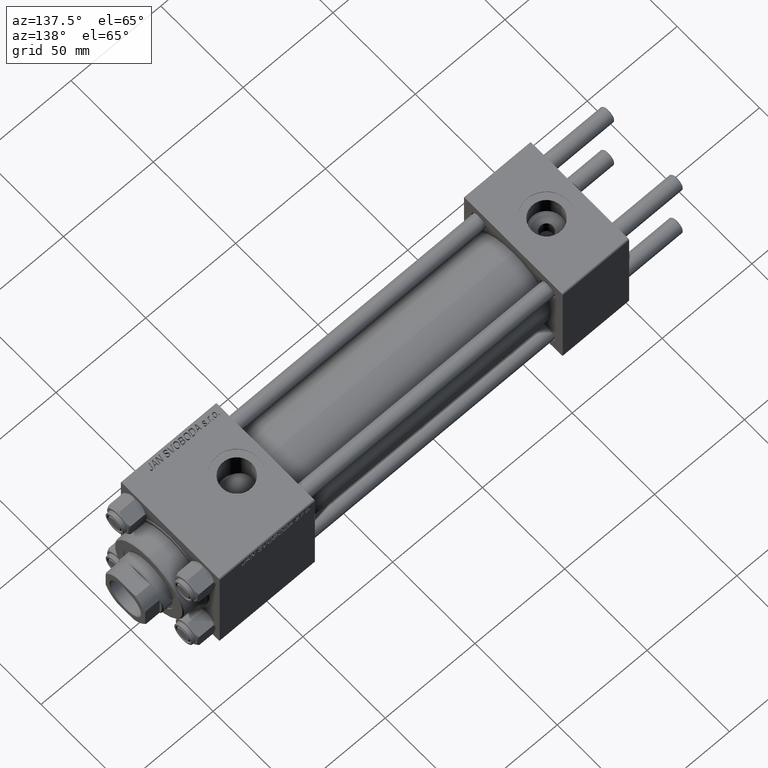
[diagram: clean part render]
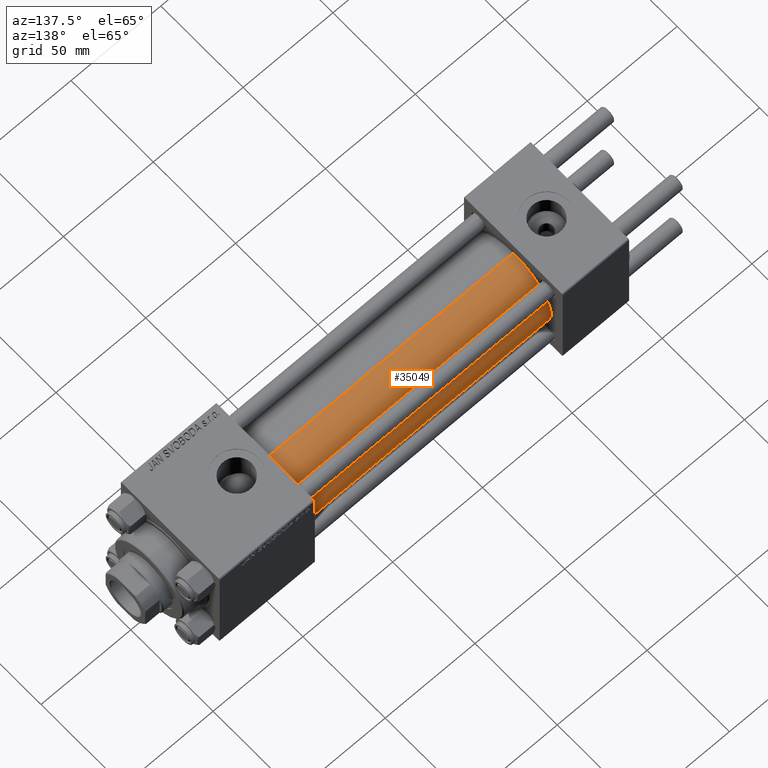
[diagram: same view with one face highlighted and labeled with its STEP entity id]
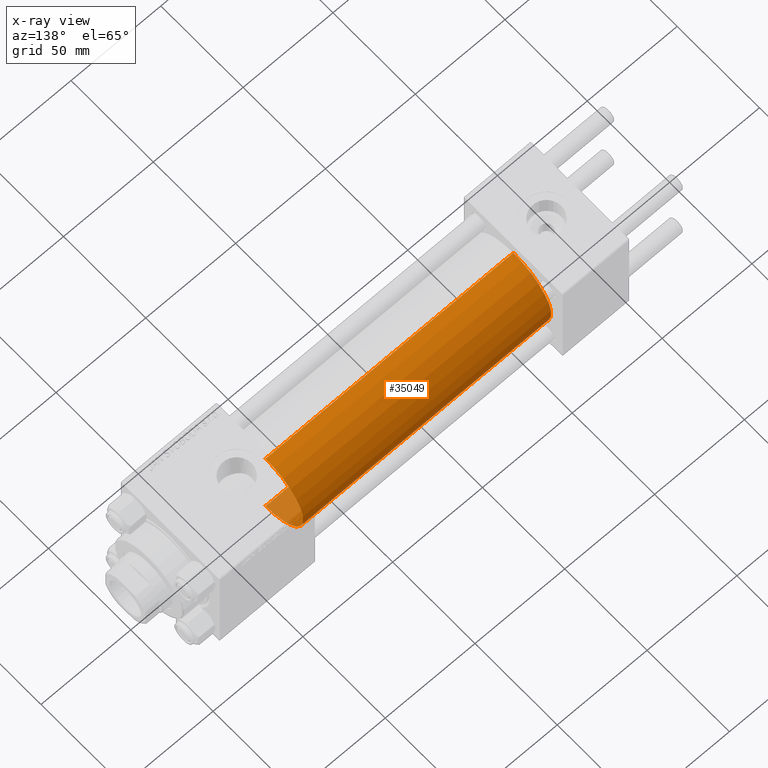
[diagram: x-ray of the same camera — body ghosted, the highlighted face saturated]
A machine part, auxiliary view. The second image highlights one B-rep face of the part: STEP entity #35049.
The next image is the same camera in x-ray: the body ghosted, the highlighted face saturated — about 3% of this face is hidden behind the body in this view.
In plain terms, the highlighted cylindrical surface (partial cylindrical patch) has radius 23 mm, axis along (-1, -0, -0).
Its self-contained STEP definition (entity closure, byte-faithful):
#1496 = CARTESIAN_POINT ( 'NONE',  ( 175.0000000000000284, 0.000000000000000000, 0.000000000000000000 ) ) ;
#2769 = VERTEX_POINT ( 'NONE', #7153 ) ;
#3836 = AXIS2_PLACEMENT_3D ( 'NONE', #21321, #36980, #9224 ) ;
#4984 = LINE ( 'NONE', #20365, #49148 ) ;
#5688 = CARTESIAN_POINT ( 'NONE',  ( 175.0000000000000284, 2.816687638038912352E-15, -23.00000000000000000 ) ) ;
#7153 = CARTESIAN_POINT ( 'NONE',  ( 37.00000000000000711, 0.000000000000000000, 23.00000000000000000 ) ) ;
#8896 = VERTEX_POINT ( 'NONE', #30347 ) ;
#9224 = DIRECTION ( 'NONE',  ( 0.000000000000000000, 0.000000000000000000, 1.000000000000000000 ) ) ;
#9936 = AXIS2_PLACEMENT_3D ( 'NONE', #29240, #17369, #32784 ) ;
#12209 = VERTEX_POINT ( 'NONE', #38378 ) ;
#13129 = EDGE_CURVE ( 'NONE', #18023, #12209, #34731, .T. ) ;
#13167 = DIRECTION ( 'NONE',  ( -1.000000000000000000, -0.000000000000000000, -0.000000000000000000 ) ) ;
#14127 = EDGE_CURVE ( 'NONE', #12209, #2769, #39320, .T. ) ;
#17369 = DIRECTION ( 'NONE',  ( -1.000000000000000000, -0.000000000000000000, -0.000000000000000000 ) ) ;
#18023 = VERTEX_POINT ( 'NONE', #5688 ) ;
#19818 = CARTESIAN_POINT ( 'NONE',  ( 175.0000000000000284, 2.816687638038912352E-15, -23.00000000000000000 ) ) ;
#20365 = CARTESIAN_POINT ( 'NONE',  ( 175.0000000000000284, 0.000000000000000000, 23.00000000000000000 ) ) ;
#21213 = VECTOR ( 'NONE', #13167, 1000.000000000000000 ) ;
#21321 = CARTESIAN_POINT ( 'NONE',  ( 37.00000000000000711, 0.000000000000000000, 0.000000000000000000 ) ) ;
#21905 = CIRCLE ( 'NONE', #37222, 23.00000000000000000 ) ;
#24315 = EDGE_CURVE ( 'NONE', #8896, #2769, #4984, .T. ) ;
#28647 = EDGE_CURVE ( 'NONE', #18023, #8896, #21905, .T. ) ;
#29240 = CARTESIAN_POINT ( 'NONE',  ( 175.0000000000000284, 0.000000000000000000, 0.000000000000000000 ) ) ;
#30347 = CARTESIAN_POINT ( 'NONE',  ( 175.0000000000000284, 0.000000000000000000, 23.00000000000000000 ) ) ;
#32285 = CYLINDRICAL_SURFACE ( 'NONE', #9936, 23.00000000000000000 ) ;
#32784 = DIRECTION ( 'NONE',  ( 0.000000000000000000, 0.000000000000000000, 1.000000000000000000 ) ) ;
#34731 = LINE ( 'NONE', #19818, #21213 ) ;
#35049 = ADVANCED_FACE ( 'NONE', ( #39859 ), #32285, .T. ) ;
#35281 = DIRECTION ( 'NONE',  ( -1.000000000000000000, -0.000000000000000000, -0.000000000000000000 ) ) ;
#36980 = DIRECTION ( 'NONE',  ( 1.000000000000000000, -0.000000000000000000, 0.000000000000000000 ) ) ;
#37222 = AXIS2_PLACEMENT_3D ( 'NONE', #1496, #47403, #47154 ) ;
#38041 = ORIENTED_EDGE ( 'NONE', *, *, #24315, .F. ) ;
#38378 = CARTESIAN_POINT ( 'NONE',  ( 37.00000000000000711, 2.816687638038912352E-15, -23.00000000000000000 ) ) ;
#39320 = CIRCLE ( 'NONE', #3836, 23.00000000000000000 ) ;
#39817 = ORIENTED_EDGE ( 'NONE', *, *, #14127, .T. ) ;
#39859 = FACE_OUTER_BOUND ( 'NONE', #49534, .T. ) ;
#41219 = ORIENTED_EDGE ( 'NONE', *, *, #28647, .F. ) ;
#45658 = ORIENTED_EDGE ( 'NONE', *, *, #13129, .T. ) ;
#47154 = DIRECTION ( 'NONE',  ( 0.000000000000000000, 0.000000000000000000, -1.000000000000000000 ) ) ;
#47403 = DIRECTION ( 'NONE',  ( 1.000000000000000000, 0.000000000000000000, 0.000000000000000000 ) ) ;
#49148 = VECTOR ( 'NONE', #35281, 1000.000000000000000 ) ;
#49534 = EDGE_LOOP ( 'NONE', ( #41219, #45658, #39817, #38041 ) ) ;